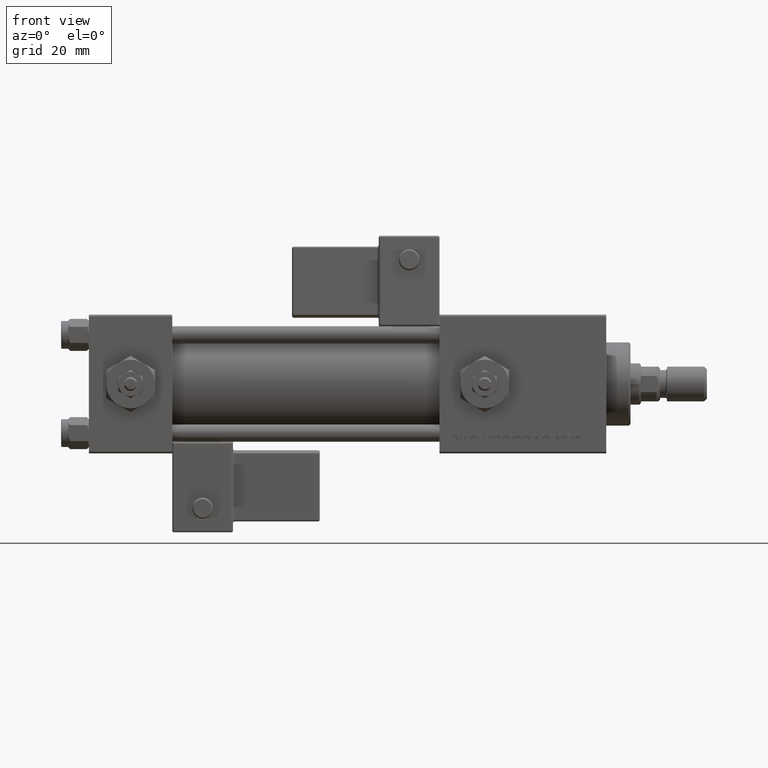
[diagram: clean part render]
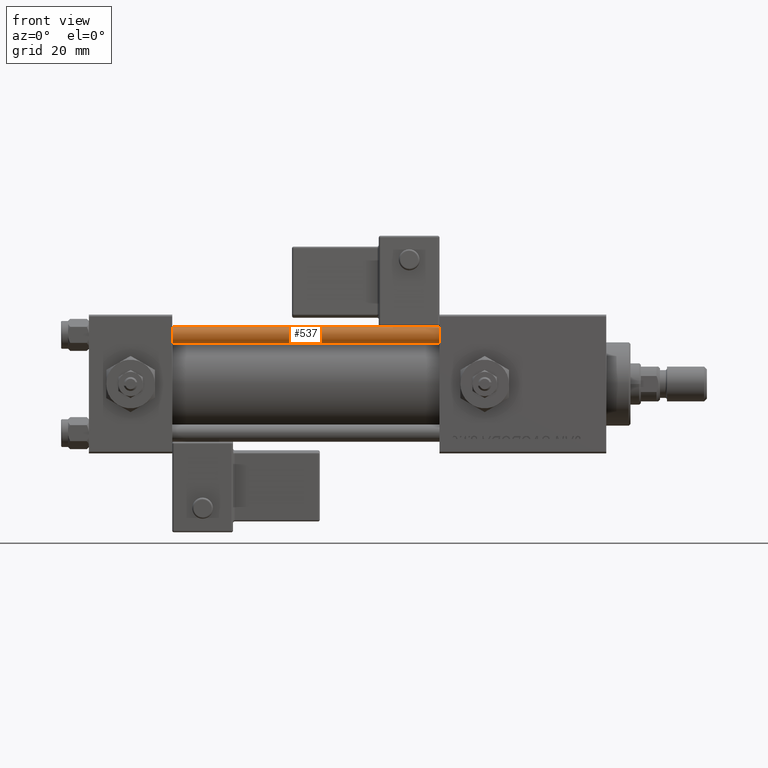
[diagram: same view with one face highlighted and labeled with its STEP entity id]
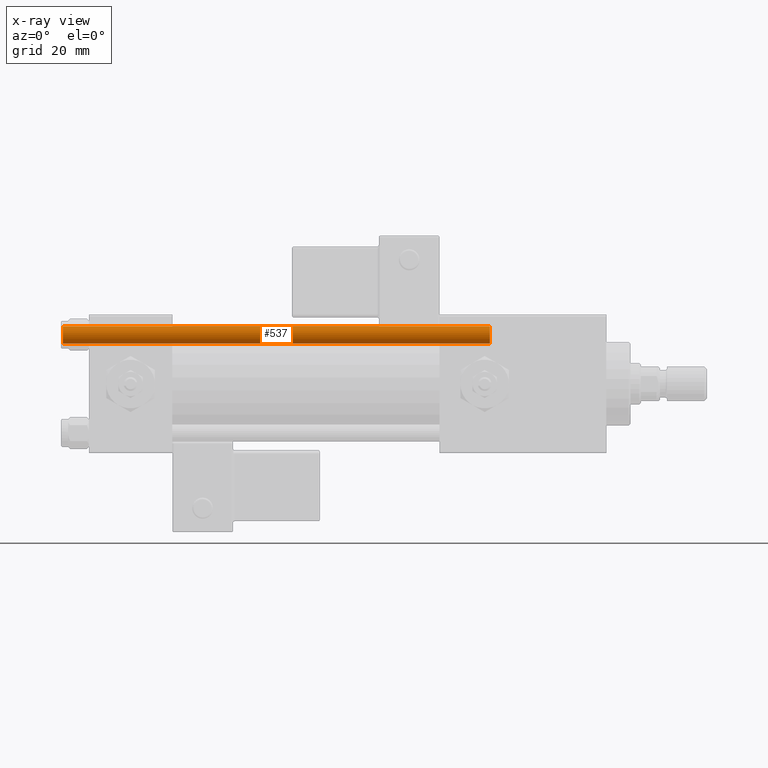
[diagram: x-ray of the same camera — body ghosted, the highlighted face saturated]
A machine part, front view. The second image highlights one B-rep face of the part: STEP entity #537.
The next image is the same camera in x-ray: the body ghosted, the highlighted face saturated — about 0% of this face is hidden behind the body in this view.
In plain terms, the highlighted cylindrical surface (edge-blend (fillet) strip) has radius 2.5 mm, axis along (1, 0, -0).
Its self-contained STEP definition (entity closure, byte-faithful):
#537 = ADVANCED_FACE ( 'NONE', ( #52742 ), #31581, .T. ) ;
#1758 = CIRCLE ( 'NONE', #23958, 2.500000000000000000 ) ;
#3388 = CARTESIAN_POINT ( 'NONE',  ( 0.000000000000000000, 0.000000000000000000, 0.5000000000000004441 ) ) ;
#3962 = CARTESIAN_POINT ( 'NONE',  ( -2.500000000000000000, 0.000000000000000000, 123.5000000000000000 ) ) ;
#5539 = VECTOR ( 'NONE', #29786, 1000.000000000000000 ) ;
#7383 = DIRECTION ( 'NONE',  ( -0.000000000000000000, -0.000000000000000000, -1.000000000000000000 ) ) ;
#9790 = EDGE_CURVE ( 'NONE', #32457, #32172, #50935, .T. ) ;
#11741 = VERTEX_POINT ( 'NONE', #3962 ) ;
#12012 = ORIENTED_EDGE ( 'NONE', *, *, #40112, .T. ) ;
#12831 = CARTESIAN_POINT ( 'NONE',  ( 2.500000000000000000, 3.061616997868383141E-16, 124.0000000000000000 ) ) ;
#16374 = VERTEX_POINT ( 'NONE', #50650 ) ;
#18084 = LINE ( 'NONE', #42602, #5539 ) ;
#20704 = DIRECTION ( 'NONE',  ( 1.000000000000000000, 0.000000000000000000, 0.000000000000000000 ) ) ;
#21001 = AXIS2_PLACEMENT_3D ( 'NONE', #28506, #45478, #20704 ) ;
#21495 = ORIENTED_EDGE ( 'NONE', *, *, #49811, .T. ) ;
#23249 = CARTESIAN_POINT ( 'NONE',  ( 2.500000000000000000, 3.061616997868383141E-16, 123.5000000000000000 ) ) ;
#23958 = AXIS2_PLACEMENT_3D ( 'NONE', #3388, #33697, #45390 ) ;
#25109 = EDGE_CURVE ( 'NONE', #11741, #16374, #18084, .T. ) ;
#25821 = ORIENTED_EDGE ( 'NONE', *, *, #9790, .T. ) ;
#28506 = CARTESIAN_POINT ( 'NONE',  ( 0.000000000000000000, 0.000000000000000000, 123.5000000000000000 ) ) ;
#28982 = CIRCLE ( 'NONE', #21001, 2.500000000000000000 ) ;
#29774 = DIRECTION ( 'NONE',  ( -0.000000000000000000, -0.000000000000000000, -1.000000000000000000 ) ) ;
#29786 = DIRECTION ( 'NONE',  ( -0.000000000000000000, -0.000000000000000000, -1.000000000000000000 ) ) ;
#31581 = CYLINDRICAL_SURFACE ( 'NONE', #34363, 2.500000000000000000 ) ;
#31706 = VECTOR ( 'NONE', #29774, 1000.000000000000000 ) ;
#32172 = VERTEX_POINT ( 'NONE', #49565 ) ;
#32457 = VERTEX_POINT ( 'NONE', #23249 ) ;
#33512 = DIRECTION ( 'NONE',  ( -1.000000000000000000, 0.000000000000000000, 0.000000000000000000 ) ) ;
#33697 = DIRECTION ( 'NONE',  ( -0.000000000000000000, -0.000000000000000000, 1.000000000000000000 ) ) ;
#34363 = AXIS2_PLACEMENT_3D ( 'NONE', #53841, #7383, #33512 ) ;
#36601 = EDGE_LOOP ( 'NONE', ( #12012, #25821, #21495, #41957 ) ) ;
#40112 = EDGE_CURVE ( 'NONE', #11741, #32457, #28982, .T. ) ;
#41957 = ORIENTED_EDGE ( 'NONE', *, *, #25109, .F. ) ;
#42602 = CARTESIAN_POINT ( 'NONE',  ( -2.500000000000000000, 0.000000000000000000, 124.0000000000000000 ) ) ;
#45390 = DIRECTION ( 'NONE',  ( 1.000000000000000000, 0.000000000000000000, 0.000000000000000000 ) ) ;
#45478 = DIRECTION ( 'NONE',  ( 0.000000000000000000, 0.000000000000000000, -1.000000000000000000 ) ) ;
#49565 = CARTESIAN_POINT ( 'NONE',  ( 2.500000000000000000, 3.061616997868383141E-16, 0.5000000000000004441 ) ) ;
#49811 = EDGE_CURVE ( 'NONE', #32172, #16374, #1758, .T. ) ;
#50650 = CARTESIAN_POINT ( 'NONE',  ( -2.500000000000000000, 0.000000000000000000, 0.5000000000000004441 ) ) ;
#50935 = LINE ( 'NONE', #12831, #31706 ) ;
#52742 = FACE_OUTER_BOUND ( 'NONE', #36601, .T. ) ;
#53841 = CARTESIAN_POINT ( 'NONE',  ( 0.000000000000000000, 0.000000000000000000, 124.0000000000000000 ) ) ;